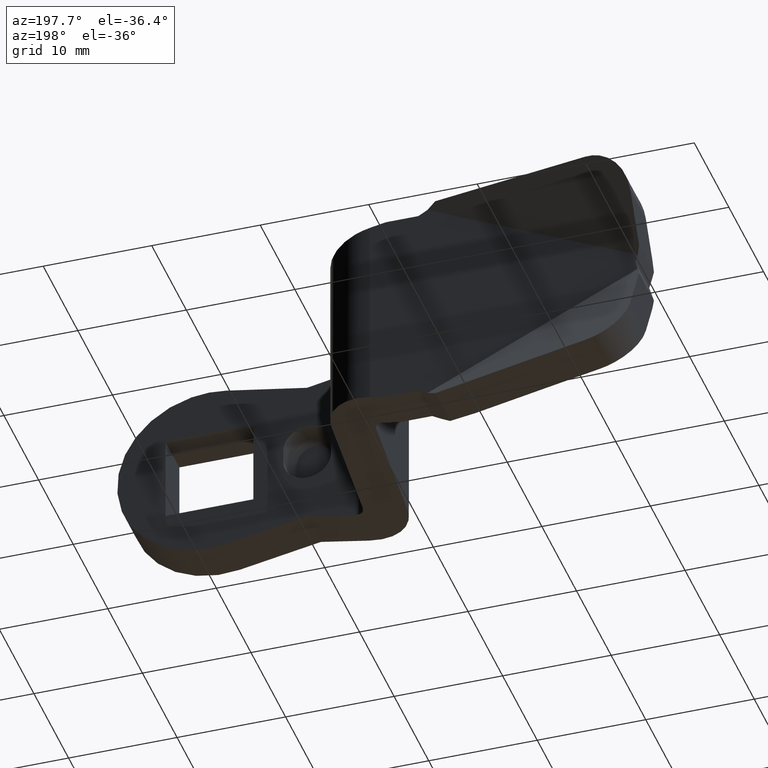
[diagram: clean part render]
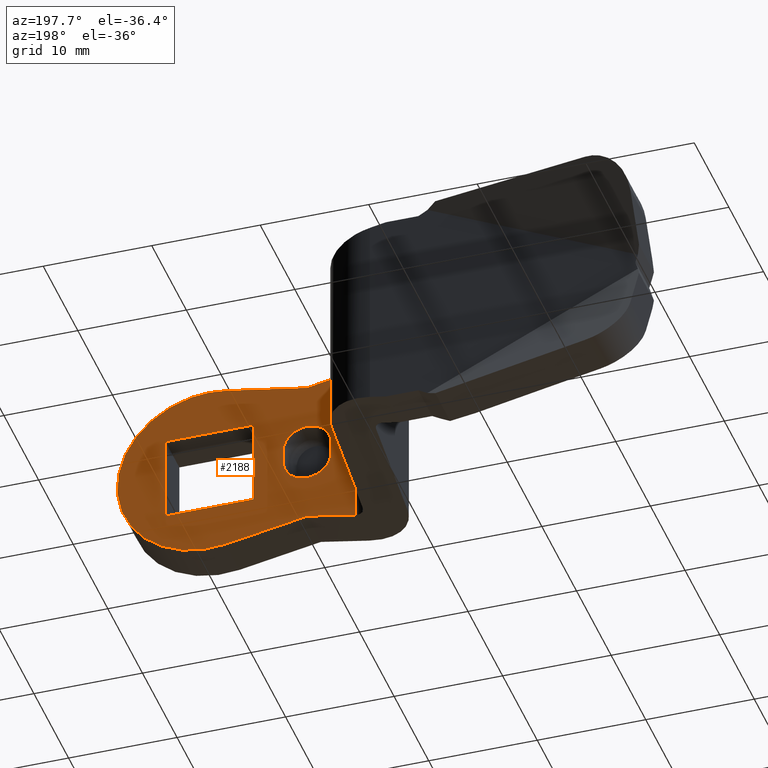
[diagram: same view with one face highlighted and labeled with its STEP entity id]
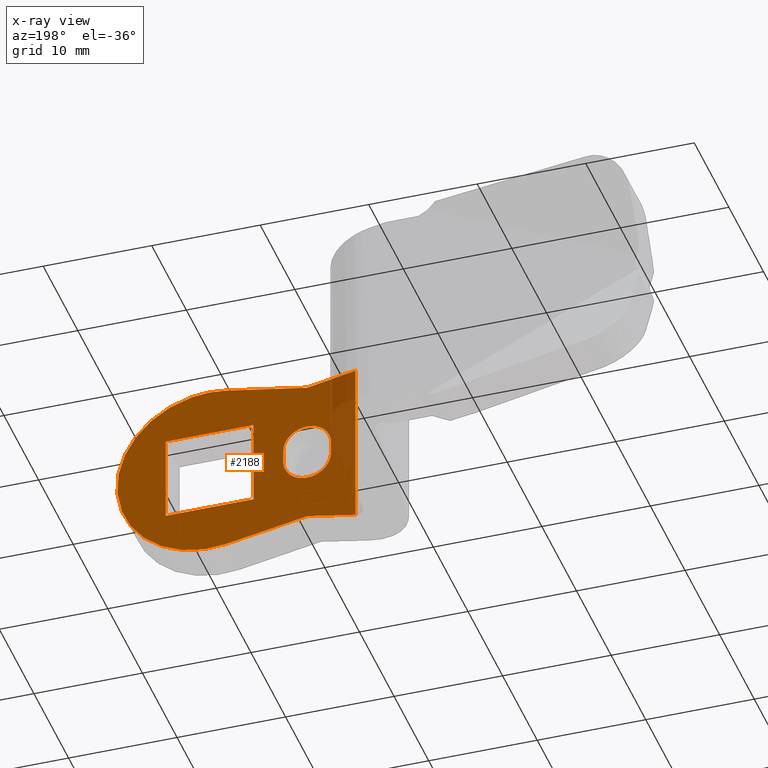
[diagram: x-ray of the same camera — body ghosted, the highlighted face saturated]
A machine part, auxiliary view. The second image highlights one B-rep face of the part: STEP entity #2188.
The next image is the same camera in x-ray: the body ghosted, the highlighted face saturated — about 9% of this face is hidden behind the body in this view.
In plain terms, the highlighted face is a freeform B-spline surface patch.
Its self-contained STEP definition (entity closure, byte-faithful):
#613=CARTESIAN_POINT('',(-13.454972366324199,-18.0,7.856725705337521));
#614=VERTEX_POINT('',#613);
#630=CARTESIAN_POINT('',(-13.454972366324199,-18.0,-7.856725705337431));
#631=VERTEX_POINT('',#630);
#632=CARTESIAN_POINT('',(-13.454972366324199,-18.0,-7.856725705337431));
#633=CARTESIAN_POINT('',(-13.454972366324199,-18.0,7.856725705337521));
#634=QUASI_UNIFORM_CURVE('',1,(#632,#633),.UNSPECIFIED.,.F.,.U.);
#635=EDGE_CURVE('',#631,#614,#634,.T.);
#812=CARTESIAN_POINT('',(-11.200000531971501,-18.0,-0.600000027900421));
#813=VERTEX_POINT('',#812);
#820=CARTESIAN_POINT('',(-6.800000322982700,-18.0,-0.600000028281858));
#821=VERTEX_POINT('',#820);
#827=CARTESIAN_POINT('',(-11.200000531971479,-18.0,-0.600000027900421));
#828=CARTESIAN_POINT('',(-11.200000532316771,-18.0,-1.870170680628504));
#829=CARTESIAN_POINT('',(-10.100000480007040,-18.0,-2.505256007155796));
#830=CARTESIAN_POINT('',(-9.000000427697312,-18.0,-3.140341333683089));
#831=CARTESIAN_POINT('',(-7.900000375277472,-18.0,-2.505256007346515));
#832=CARTESIAN_POINT('',(-6.800000322857629,-18.0,-1.870170681009943));
#833=CARTESIAN_POINT('',(-6.800000322982699,-18.0,-0.600000028281858));
#841=(BOUNDED_CURVE()B_SPLINE_CURVE(2,(#827,#828,#829,#830,#831,#832,#833),.UNSPECIFIED.,.F.,.U.)B_SPLINE_CURVE_WITH_KNOTS((3,2,2,3),(0.0,0.333333333333333,0.666666666666667,1.0),.UNSPECIFIED.)CURVE()GEOMETRIC_REPRESENTATION_ITEM()RATIONAL_B_SPLINE_CURVE((1.0,0.866025403753579,1.0,0.866025403753579,1.0,0.866025403753579,1.0))REPRESENTATION_ITEM(''));
#842=EDGE_CURVE('',#813,#821,#841,.T.);
#852=CARTESIAN_POINT('',(-11.200000531971501,-18.0,0.600000028498428));
#853=VERTEX_POINT('',#852);
#861=CARTESIAN_POINT('',(-11.200000531971501,-18.0,0.600000028498428));
#862=CARTESIAN_POINT('',(-11.200000531971501,-18.0,-0.600000027900421));
#863=QUASI_UNIFORM_CURVE('',1,(#861,#862),.UNSPECIFIED.,.F.,.U.);
#864=EDGE_CURVE('',#853,#813,#863,.T.);
#887=CARTESIAN_POINT('',(-6.800000322982689,-18.0,0.600000027900379));
#888=VERTEX_POINT('',#887);
#896=CARTESIAN_POINT('',(-6.800000322982695,-18.0,0.600000027900379));
#897=CARTESIAN_POINT('',(-6.800000322637409,-18.000000000000007,1.870170680580322));
#898=CARTESIAN_POINT('',(-7.900000374884608,-18.0,2.505256007119644));
#899=CARTESIAN_POINT('',(-9.000000427131806,-18.000000000000007,3.140341333658966));
#900=CARTESIAN_POINT('',(-10.100000479551641,-18.0,2.505256007418669));
#901=CARTESIAN_POINT('',(-11.200000531971485,-18.000000000000007,1.870170681178373));
#902=CARTESIAN_POINT('',(-11.200000531971490,-18.0,0.600000028498428));
#910=(BOUNDED_CURVE()B_SPLINE_CURVE(2,(#896,#897,#898,#899,#900,#901,#902),.UNSPECIFIED.,.F.,.U.)B_SPLINE_CURVE_WITH_KNOTS((3,2,2,3),(0.0,0.333333333333333,0.666666666666667,1.0),.UNSPECIFIED.)CURVE()GEOMETRIC_REPRESENTATION_ITEM()RATIONAL_B_SPLINE_CURVE((1.0,0.866025403761785,1.0,0.866025403761785,1.0,0.866025403761785,1.0))REPRESENTATION_ITEM(''));
#911=EDGE_CURVE('',#888,#853,#910,.T.);
#924=CARTESIAN_POINT('',(-6.800000322982700,-18.0,-0.600000028281858));
#925=CARTESIAN_POINT('',(-6.800000322982689,-18.0,0.600000027900379));
#926=QUASI_UNIFORM_CURVE('',1,(#924,#925),.UNSPECIFIED.,.F.,.U.);
#927=EDGE_CURVE('',#821,#888,#926,.T.);
#1541=CARTESIAN_POINT('',(-4.050000192364635,-18.0,4.050000192364690));
#1542=VERTEX_POINT('',#1541);
#1543=CARTESIAN_POINT('',(-4.050000192364635,-18.0,-4.050000192364680));
#1544=VERTEX_POINT('',#1543);
#1545=CARTESIAN_POINT('',(-4.050000192364635,-18.0,4.050000192364690));
#1546=CARTESIAN_POINT('',(-4.050000192364635,-18.0,-4.050000192364680));
#1547=QUASI_UNIFORM_CURVE('',1,(#1545,#1546),.UNSPECIFIED.,.F.,.U.);
#1548=EDGE_CURVE('',#1542,#1544,#1547,.T.);
#1577=CARTESIAN_POINT('',(4.050000192364690,-18.0,4.050000192364690));
#1578=VERTEX_POINT('',#1577);
#1579=CARTESIAN_POINT('',(4.050000192364690,-18.0,4.050000192364690));
#1580=CARTESIAN_POINT('',(-4.050000192364635,-18.0,4.050000192364690));
#1581=QUASI_UNIFORM_CURVE('',1,(#1579,#1580),.UNSPECIFIED.,.F.,.U.);
#1582=EDGE_CURVE('',#1578,#1542,#1581,.T.);
#1605=CARTESIAN_POINT('',(4.050000192364690,-18.0,-4.050000192364665));
#1606=VERTEX_POINT('',#1605);
#1607=CARTESIAN_POINT('',(4.050000192364690,-18.0,-4.050000192364665));
#1608=CARTESIAN_POINT('',(4.050000192364690,-18.0,4.050000192364690));
#1609=QUASI_UNIFORM_CURVE('',1,(#1607,#1608),.UNSPECIFIED.,.F.,.U.);
#1610=EDGE_CURVE('',#1606,#1578,#1609,.T.);
#1633=CARTESIAN_POINT('',(-4.050000192364635,-18.0,-4.050000192364680));
#1634=CARTESIAN_POINT('',(4.050000192364690,-18.0,-4.050000192364665));
#1635=QUASI_UNIFORM_CURVE('',1,(#1633,#1634),.UNSPECIFIED.,.F.,.U.);
#1636=EDGE_CURVE('',#1544,#1606,#1635,.T.);
#1655=CARTESIAN_POINT('',(-9.000000427477419,-18.0,-7.000000332482330));
#1656=VERTEX_POINT('',#1655);
#1662=CARTESIAN_POINT('',(-1.523762737230910,-18.0,-8.362305542373751));
#1663=VERTEX_POINT('',#1662);
#1664=CARTESIAN_POINT('',(-9.000000427477419,-18.0,-7.000000332482330));
#1665=CARTESIAN_POINT('',(-1.523762737230910,-18.0,-8.362305542373751));
#1666=QUASI_UNIFORM_CURVE('',1,(#1664,#1665),.UNSPECIFIED.,.F.,.U.);
#1667=EDGE_CURVE('',#1656,#1663,#1666,.T.);
#1691=CARTESIAN_POINT('',(-1.523762737230875,-18.0,8.362305542373401));
#1692=VERTEX_POINT('',#1691);
#1698=CARTESIAN_POINT('',(-9.000000427477460,-18.0,7.000000332482490));
#1699=VERTEX_POINT('',#1698);
#1700=CARTESIAN_POINT('',(-1.523762737230875,-18.0,8.362305542373401));
#1701=CARTESIAN_POINT('',(-9.000000427477460,-18.0,7.000000332482490));
#1702=QUASI_UNIFORM_CURVE('',1,(#1700,#1701),.UNSPECIFIED.,.F.,.U.);
#1703=EDGE_CURVE('',#1692,#1699,#1702,.T.);
#1738=CARTESIAN_POINT('',(-1.523762737230910,-18.0,-8.362305542373751));
#1739=CARTESIAN_POINT('',(3.999032446587343,-17.999999999999996,-9.368658331543484));
#1740=CARTESIAN_POINT('',(7.092747502208309,-18.0,-4.684329165771725));
#1741=CARTESIAN_POINT('',(10.186462557829275,-17.999999999999996,3.242545E-014));
#1742=CARTESIAN_POINT('',(7.092747502208290,-18.0,4.684329165771780));
#1743=CARTESIAN_POINT('',(3.999032446587308,-17.999999999999996,9.368658331543523));
#1744=CARTESIAN_POINT('',(-1.523762737230865,-18.0,8.362305542373402));
#1752=(BOUNDED_CURVE()B_SPLINE_CURVE(2,(#1738,#1739,#1740,#1741,#1742,#1743,#1744),.UNSPECIFIED.,.F.,.U.)B_SPLINE_CURVE_WITH_KNOTS((3,2,2,3),(0.0,0.333333333333333,0.666666666666667,1.0),.UNSPECIFIED.)CURVE()GEOMETRIC_REPRESENTATION_ITEM()RATIONAL_B_SPLINE_CURVE((1.0,0.834440842978927,1.0,0.834440842978927,1.0,0.834440842978927,1.0))REPRESENTATION_ITEM(''));
#1753=EDGE_CURVE('',#1663,#1692,#1752,.T.);
#1990=CARTESIAN_POINT('',(-13.454972366324199,-18.0,-7.856725705337431));
#1991=CARTESIAN_POINT('',(-9.000000427477419,-18.0,-7.000000332482330));
#1992=QUASI_UNIFORM_CURVE('',1,(#1990,#1991),.UNSPECIFIED.,.F.,.U.);
#1993=EDGE_CURVE('',#631,#1656,#1992,.T.);
#2024=CARTESIAN_POINT('',(-9.000000427477460,-18.0,7.000000332482490));
#2025=CARTESIAN_POINT('',(-13.454972366324199,-18.0,7.856725705337521));
#2026=QUASI_UNIFORM_CURVE('',1,(#2024,#2025),.UNSPECIFIED.,.F.,.U.);
#2027=EDGE_CURVE('',#1699,#614,#2026,.T.);
#2163=CARTESIAN_POINT('',(-14.551623135196740,-18.0,9.349129076291080));
#2164=CARTESIAN_POINT('',(-14.551623135196740,-18.0,-9.349129157347081));
#2165=CARTESIAN_POINT('',(9.596650191137121,-18.0,9.349129076291080));
#2166=CARTESIAN_POINT('',(9.596650191137121,-18.0,-9.349129157347079));
#2167=B_SPLINE_SURFACE_WITH_KNOTS('',1,1,((#2163,#2165),(#2164,#2166)),.UNSPECIFIED.,.F.,.F.,.U.,(2,2),(2,2),(0.0,18.698258233638160),(0.0,24.148273326333861),.UNSPECIFIED.);
#2168=ORIENTED_EDGE('',*,*,#1993,.F.);
#2169=ORIENTED_EDGE('',*,*,#635,.T.);
#2170=ORIENTED_EDGE('',*,*,#2027,.F.);
#2171=ORIENTED_EDGE('',*,*,#1703,.F.);
#2172=ORIENTED_EDGE('',*,*,#1753,.F.);
#2173=ORIENTED_EDGE('',*,*,#1667,.F.);
#2174=EDGE_LOOP('',(#2168,#2169,#2170,#2171,#2172,#2173));
#2175=FACE_OUTER_BOUND('',#2174,.T.);
#2176=ORIENTED_EDGE('',*,*,#1636,.T.);
#2177=ORIENTED_EDGE('',*,*,#1610,.T.);
#2178=ORIENTED_EDGE('',*,*,#1582,.T.);
#2179=ORIENTED_EDGE('',*,*,#1548,.T.);
#2180=EDGE_LOOP('',(#2176,#2177,#2178,#2179));
#2181=FACE_BOUND('',#2180,.T.);
#2182=ORIENTED_EDGE('',*,*,#927,.T.);
#2183=ORIENTED_EDGE('',*,*,#911,.T.);
#2184=ORIENTED_EDGE('',*,*,#864,.T.);
#2185=ORIENTED_EDGE('',*,*,#842,.T.);
#2186=EDGE_LOOP('',(#2182,#2183,#2184,#2185));
#2187=FACE_BOUND('',#2186,.T.);
#2188=ADVANCED_FACE('',(#2175,#2181,#2187),#2167,.F.);